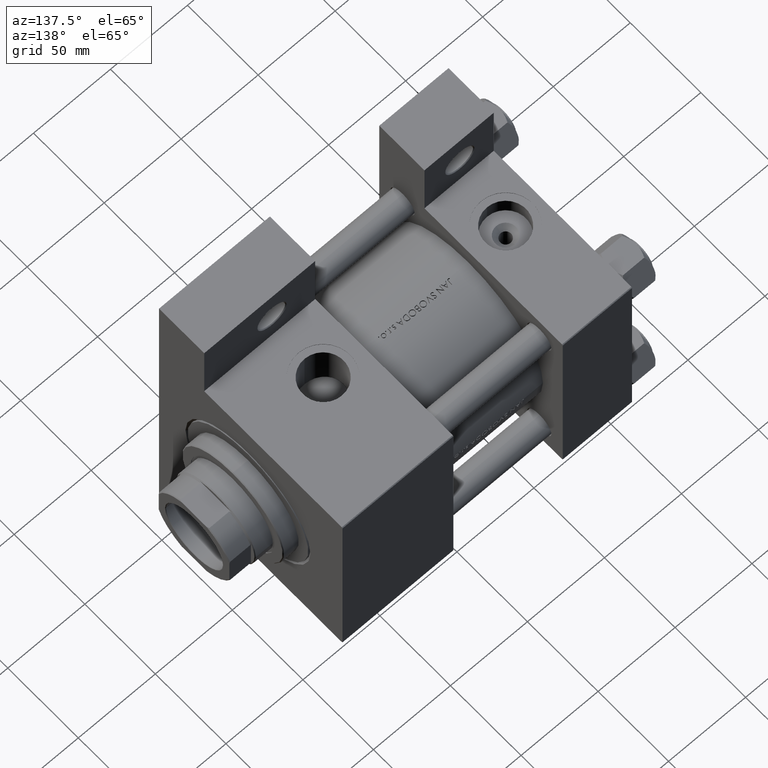
[diagram: clean part render]
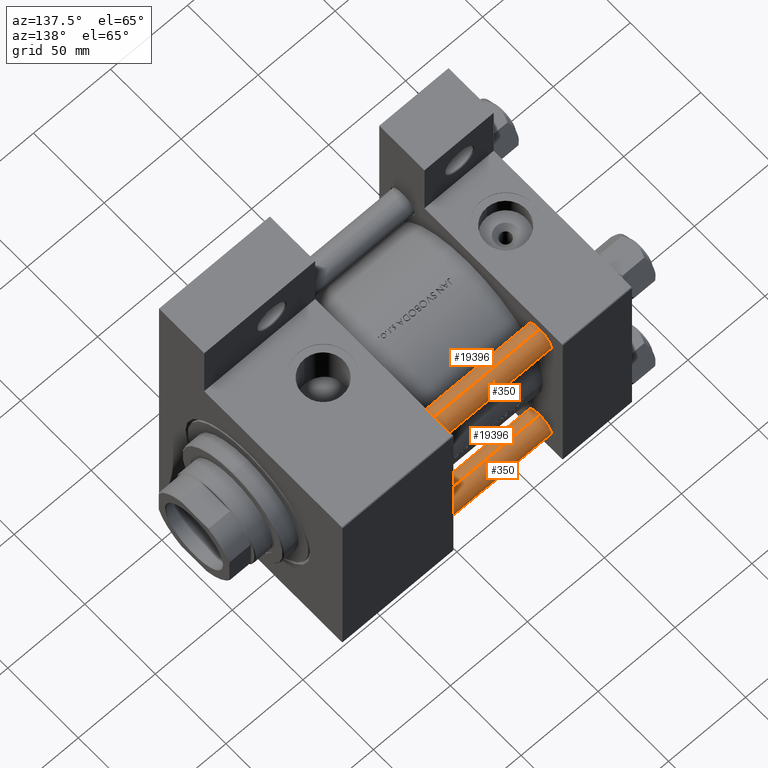
[diagram: same view with one multi-face feature highlighted, each face labeled with its STEP entity id]
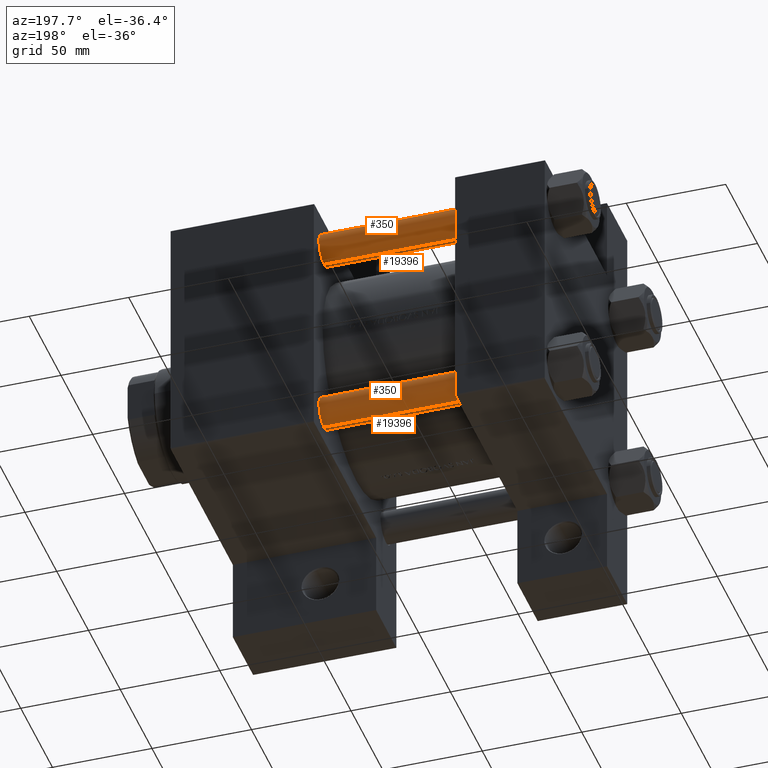
[diagram: same view with one multi-face feature highlighted, each face labeled with its STEP entity id]
A machine part, auxiliary view. The highlighted faces form ONE feature: a constant-radius fillet chain: 4 tangent blend faces with common blend radius 8 mm. The faces share edges in the B-rep.
A second angle (auxiliary view) of the same feature is appended — it is thin or edge-on in the first view.
Their STEP definitions:
[1] entity #19396 (Cylinder):
#343 = EDGE_CURVE ( 'NONE', #8729, #14039, #44628, .T. ) ;
#3503 = LINE ( 'NONE', #40464, #38687 ) ;
#3846 = CARTESIAN_POINT ( 'NONE',  ( 0.000000000000000000, 0.000000000000000000, 149.0000000000000000 ) ) ;
#4328 = AXIS2_PLACEMENT_3D ( 'NONE', #19333, #11572, #41271 ) ;
#4492 = EDGE_CURVE ( 'NONE', #6381, #22652, #3503, .T. ) ;
#6381 = VERTEX_POINT ( 'NONE', #13629 ) ;
#7470 = FACE_OUTER_BOUND ( 'NONE', #25551, .T. ) ;
#7726 = CIRCLE ( 'NONE', #34938, 8.000000000000000000 ) ;
#7809 = DIRECTION ( 'NONE',  ( 1.000000000000000000, 0.000000000000000000, 0.000000000000000000 ) ) ;
#8676 = CARTESIAN_POINT ( 'NONE',  ( -8.000000000000000000, 0.000000000000000000, 148.5000000000000000 ) ) ;
#8729 = VERTEX_POINT ( 'NONE', #8676 ) ;
#10760 = DIRECTION ( 'NONE',  ( -0.000000000000000000, -0.000000000000000000, -1.000000000000000000 ) ) ;
#11572 = DIRECTION ( 'NONE',  ( -0.000000000000000000, -0.000000000000000000, 1.000000000000000000 ) ) ;
#12418 = EDGE_CURVE ( 'NONE', #6381, #8729, #7726, .T. ) ;
#12838 = CARTESIAN_POINT ( 'NONE',  ( 8.000000000000000000, 9.797174393178825657E-16, 0.5000000000000281997 ) ) ;
#13629 = CARTESIAN_POINT ( 'NONE',  ( 8.000000000000000000, 9.797174393178825657E-16, 148.5000000000000000 ) ) ;
#14039 = VERTEX_POINT ( 'NONE', #38333 ) ;
#14159 = AXIS2_PLACEMENT_3D ( 'NONE', #3846, #40333, #21803 ) ;
#15387 = ORIENTED_EDGE ( 'NONE', *, *, #4492, .F. ) ;
#19333 = CARTESIAN_POINT ( 'NONE',  ( 0.000000000000000000, 0.000000000000000000, 0.5000000000000281997 ) ) ;
#19396 = ADVANCED_FACE ( 'NONE', ( #7470 ), #37158, .T. ) ;
#21466 = ORIENTED_EDGE ( 'NONE', *, *, #12418, .T. ) ;
#21803 = DIRECTION ( 'NONE',  ( -1.000000000000000000, 0.000000000000000000, 0.000000000000000000 ) ) ;
#22652 = VERTEX_POINT ( 'NONE', #12838 ) ;
#25551 = EDGE_LOOP ( 'NONE', ( #15387, #21466, #29806, #27787 ) ) ;
#27787 = ORIENTED_EDGE ( 'NONE', *, *, #39808, .T. ) ;
#29806 = ORIENTED_EDGE ( 'NONE', *, *, #343, .T. ) ;
#29960 = CARTESIAN_POINT ( 'NONE',  ( 0.000000000000000000, 0.000000000000000000, 148.5000000000000000 ) ) ;
#32956 = DIRECTION ( 'NONE',  ( -0.000000000000000000, -0.000000000000000000, -1.000000000000000000 ) ) ;
#34938 = AXIS2_PLACEMENT_3D ( 'NONE', #29960, #45277, #7809 ) ;
#37158 = CYLINDRICAL_SURFACE ( 'NONE', #14159, 8.000000000000000000 ) ;
#37774 = VECTOR ( 'NONE', #32956, 1000.000000000000000 ) ;
#38333 = CARTESIAN_POINT ( 'NONE',  ( -8.000000000000000000, 0.000000000000000000, 0.5000000000000281997 ) ) ;
#38687 = VECTOR ( 'NONE', #10760, 1000.000000000000000 ) ;
#39808 = EDGE_CURVE ( 'NONE', #14039, #22652, #46266, .T. ) ;
#40333 = DIRECTION ( 'NONE',  ( -0.000000000000000000, -0.000000000000000000, -1.000000000000000000 ) ) ;
#40464 = CARTESIAN_POINT ( 'NONE',  ( 8.000000000000000000, 9.797174393178825657E-16, 149.0000000000000000 ) ) ;
#41271 = DIRECTION ( 'NONE',  ( 1.000000000000000000, 0.000000000000000000, 0.000000000000000000 ) ) ;
#44628 = LINE ( 'NONE', #44859, #37774 ) ;
#44859 = CARTESIAN_POINT ( 'NONE',  ( -8.000000000000000000, 0.000000000000000000, 149.0000000000000000 ) ) ;
#45277 = DIRECTION ( 'NONE',  ( 0.000000000000000000, 0.000000000000000000, -1.000000000000000000 ) ) ;
#46266 = CIRCLE ( 'NONE', #4328, 8.000000000000000000 ) ;
[2] entity #350 (Cylinder):
#343 = EDGE_CURVE ( 'NONE', #8729, #14039, #44628, .T. ) ;
#350 = ADVANCED_FACE ( 'NONE', ( #47784 ), #29290, .T. ) ;
#759 = EDGE_CURVE ( 'NONE', #22652, #14039, #33922, .T. ) ;
#3503 = LINE ( 'NONE', #40464, #38687 ) ;
#3762 = DIRECTION ( 'NONE',  ( 0.000000000000000000, 0.000000000000000000, -1.000000000000000000 ) ) ;
#4492 = EDGE_CURVE ( 'NONE', #6381, #22652, #3503, .T. ) ;
#6381 = VERTEX_POINT ( 'NONE', #13629 ) ;
#7635 = DIRECTION ( 'NONE',  ( -0.000000000000000000, -0.000000000000000000, -1.000000000000000000 ) ) ;
#8031 = ORIENTED_EDGE ( 'NONE', *, *, #4492, .T. ) ;
#8676 = CARTESIAN_POINT ( 'NONE',  ( -8.000000000000000000, 0.000000000000000000, 148.5000000000000000 ) ) ;
#8729 = VERTEX_POINT ( 'NONE', #8676 ) ;
#10760 = DIRECTION ( 'NONE',  ( -0.000000000000000000, -0.000000000000000000, -1.000000000000000000 ) ) ;
#12306 = ORIENTED_EDGE ( 'NONE', *, *, #26586, .T. ) ;
#12838 = CARTESIAN_POINT ( 'NONE',  ( 8.000000000000000000, 9.797174393178825657E-16, 0.5000000000000281997 ) ) ;
#12877 = CARTESIAN_POINT ( 'NONE',  ( 0.000000000000000000, 0.000000000000000000, 0.5000000000000281997 ) ) ;
#13629 = CARTESIAN_POINT ( 'NONE',  ( 8.000000000000000000, 9.797174393178825657E-16, 148.5000000000000000 ) ) ;
#14039 = VERTEX_POINT ( 'NONE', #38333 ) ;
#14106 = AXIS2_PLACEMENT_3D ( 'NONE', #15367, #3762, #45086 ) ;
#14907 = EDGE_LOOP ( 'NONE', ( #12306, #8031, #27548, #26504 ) ) ;
#15367 = CARTESIAN_POINT ( 'NONE',  ( 0.000000000000000000, 0.000000000000000000, 148.5000000000000000 ) ) ;
#20667 = AXIS2_PLACEMENT_3D ( 'NONE', #12877, #45278, #30670 ) ;
#22652 = VERTEX_POINT ( 'NONE', #12838 ) ;
#24552 = AXIS2_PLACEMENT_3D ( 'NONE', #40970, #7635, #44390 ) ;
#26504 = ORIENTED_EDGE ( 'NONE', *, *, #343, .F. ) ;
#26586 = EDGE_CURVE ( 'NONE', #8729, #6381, #39754, .T. ) ;
#27548 = ORIENTED_EDGE ( 'NONE', *, *, #759, .T. ) ;
#29290 = CYLINDRICAL_SURFACE ( 'NONE', #24552, 8.000000000000000000 ) ;
#30670 = DIRECTION ( 'NONE',  ( 1.000000000000000000, 0.000000000000000000, 0.000000000000000000 ) ) ;
#32956 = DIRECTION ( 'NONE',  ( -0.000000000000000000, -0.000000000000000000, -1.000000000000000000 ) ) ;
#33922 = CIRCLE ( 'NONE', #20667, 8.000000000000000000 ) ;
#37774 = VECTOR ( 'NONE', #32956, 1000.000000000000000 ) ;
#38333 = CARTESIAN_POINT ( 'NONE',  ( -8.000000000000000000, 0.000000000000000000, 0.5000000000000281997 ) ) ;
#38687 = VECTOR ( 'NONE', #10760, 1000.000000000000000 ) ;
#39754 = CIRCLE ( 'NONE', #14106, 8.000000000000000000 ) ;
#40464 = CARTESIAN_POINT ( 'NONE',  ( 8.000000000000000000, 9.797174393178825657E-16, 149.0000000000000000 ) ) ;
#40970 = CARTESIAN_POINT ( 'NONE',  ( 0.000000000000000000, 0.000000000000000000, 149.0000000000000000 ) ) ;
#44390 = DIRECTION ( 'NONE',  ( -1.000000000000000000, 0.000000000000000000, 0.000000000000000000 ) ) ;
#44628 = LINE ( 'NONE', #44859, #37774 ) ;
#44859 = CARTESIAN_POINT ( 'NONE',  ( -8.000000000000000000, 0.000000000000000000, 149.0000000000000000 ) ) ;
#45086 = DIRECTION ( 'NONE',  ( 1.000000000000000000, 0.000000000000000000, 0.000000000000000000 ) ) ;
#45278 = DIRECTION ( 'NONE',  ( -0.000000000000000000, -0.000000000000000000, 1.000000000000000000 ) ) ;
#47784 = FACE_OUTER_BOUND ( 'NONE', #14907, .T. ) ;
[3] entity #19396 (Cylinder):
#343 = EDGE_CURVE ( 'NONE', #8729, #14039, #44628, .T. ) ;
#3503 = LINE ( 'NONE', #40464, #38687 ) ;
#3846 = CARTESIAN_POINT ( 'NONE',  ( 0.000000000000000000, 0.000000000000000000, 149.0000000000000000 ) ) ;
#4328 = AXIS2_PLACEMENT_3D ( 'NONE', #19333, #11572, #41271 ) ;
#4492 = EDGE_CURVE ( 'NONE', #6381, #22652, #3503, .T. ) ;
#6381 = VERTEX_POINT ( 'NONE', #13629 ) ;
#7470 = FACE_OUTER_BOUND ( 'NONE', #25551, .T. ) ;
#7726 = CIRCLE ( 'NONE', #34938, 8.000000000000000000 ) ;
#7809 = DIRECTION ( 'NONE',  ( 1.000000000000000000, 0.000000000000000000, 0.000000000000000000 ) ) ;
#8676 = CARTESIAN_POINT ( 'NONE',  ( -8.000000000000000000, 0.000000000000000000, 148.5000000000000000 ) ) ;
#8729 = VERTEX_POINT ( 'NONE', #8676 ) ;
#10760 = DIRECTION ( 'NONE',  ( -0.000000000000000000, -0.000000000000000000, -1.000000000000000000 ) ) ;
#11572 = DIRECTION ( 'NONE',  ( -0.000000000000000000, -0.000000000000000000, 1.000000000000000000 ) ) ;
#12418 = EDGE_CURVE ( 'NONE', #6381, #8729, #7726, .T. ) ;
#12838 = CARTESIAN_POINT ( 'NONE',  ( 8.000000000000000000, 9.797174393178825657E-16, 0.5000000000000281997 ) ) ;
#13629 = CARTESIAN_POINT ( 'NONE',  ( 8.000000000000000000, 9.797174393178825657E-16, 148.5000000000000000 ) ) ;
#14039 = VERTEX_POINT ( 'NONE', #38333 ) ;
#14159 = AXIS2_PLACEMENT_3D ( 'NONE', #3846, #40333, #21803 ) ;
#15387 = ORIENTED_EDGE ( 'NONE', *, *, #4492, .F. ) ;
#19333 = CARTESIAN_POINT ( 'NONE',  ( 0.000000000000000000, 0.000000000000000000, 0.5000000000000281997 ) ) ;
#19396 = ADVANCED_FACE ( 'NONE', ( #7470 ), #37158, .T. ) ;
#21466 = ORIENTED_EDGE ( 'NONE', *, *, #12418, .T. ) ;
#21803 = DIRECTION ( 'NONE',  ( -1.000000000000000000, 0.000000000000000000, 0.000000000000000000 ) ) ;
#22652 = VERTEX_POINT ( 'NONE', #12838 ) ;
#25551 = EDGE_LOOP ( 'NONE', ( #15387, #21466, #29806, #27787 ) ) ;
#27787 = ORIENTED_EDGE ( 'NONE', *, *, #39808, .T. ) ;
#29806 = ORIENTED_EDGE ( 'NONE', *, *, #343, .T. ) ;
#29960 = CARTESIAN_POINT ( 'NONE',  ( 0.000000000000000000, 0.000000000000000000, 148.5000000000000000 ) ) ;
#32956 = DIRECTION ( 'NONE',  ( -0.000000000000000000, -0.000000000000000000, -1.000000000000000000 ) ) ;
#34938 = AXIS2_PLACEMENT_3D ( 'NONE', #29960, #45277, #7809 ) ;
#37158 = CYLINDRICAL_SURFACE ( 'NONE', #14159, 8.000000000000000000 ) ;
#37774 = VECTOR ( 'NONE', #32956, 1000.000000000000000 ) ;
#38333 = CARTESIAN_POINT ( 'NONE',  ( -8.000000000000000000, 0.000000000000000000, 0.5000000000000281997 ) ) ;
#38687 = VECTOR ( 'NONE', #10760, 1000.000000000000000 ) ;
#39808 = EDGE_CURVE ( 'NONE', #14039, #22652, #46266, .T. ) ;
#40333 = DIRECTION ( 'NONE',  ( -0.000000000000000000, -0.000000000000000000, -1.000000000000000000 ) ) ;
#40464 = CARTESIAN_POINT ( 'NONE',  ( 8.000000000000000000, 9.797174393178825657E-16, 149.0000000000000000 ) ) ;
#41271 = DIRECTION ( 'NONE',  ( 1.000000000000000000, 0.000000000000000000, 0.000000000000000000 ) ) ;
#44628 = LINE ( 'NONE', #44859, #37774 ) ;
#44859 = CARTESIAN_POINT ( 'NONE',  ( -8.000000000000000000, 0.000000000000000000, 149.0000000000000000 ) ) ;
#45277 = DIRECTION ( 'NONE',  ( 0.000000000000000000, 0.000000000000000000, -1.000000000000000000 ) ) ;
#46266 = CIRCLE ( 'NONE', #4328, 8.000000000000000000 ) ;
[4] entity #350 (Cylinder):
#343 = EDGE_CURVE ( 'NONE', #8729, #14039, #44628, .T. ) ;
#350 = ADVANCED_FACE ( 'NONE', ( #47784 ), #29290, .T. ) ;
#759 = EDGE_CURVE ( 'NONE', #22652, #14039, #33922, .T. ) ;
#3503 = LINE ( 'NONE', #40464, #38687 ) ;
#3762 = DIRECTION ( 'NONE',  ( 0.000000000000000000, 0.000000000000000000, -1.000000000000000000 ) ) ;
#4492 = EDGE_CURVE ( 'NONE', #6381, #22652, #3503, .T. ) ;
#6381 = VERTEX_POINT ( 'NONE', #13629 ) ;
#7635 = DIRECTION ( 'NONE',  ( -0.000000000000000000, -0.000000000000000000, -1.000000000000000000 ) ) ;
#8031 = ORIENTED_EDGE ( 'NONE', *, *, #4492, .T. ) ;
#8676 = CARTESIAN_POINT ( 'NONE',  ( -8.000000000000000000, 0.000000000000000000, 148.5000000000000000 ) ) ;
#8729 = VERTEX_POINT ( 'NONE', #8676 ) ;
#10760 = DIRECTION ( 'NONE',  ( -0.000000000000000000, -0.000000000000000000, -1.000000000000000000 ) ) ;
#12306 = ORIENTED_EDGE ( 'NONE', *, *, #26586, .T. ) ;
#12838 = CARTESIAN_POINT ( 'NONE',  ( 8.000000000000000000, 9.797174393178825657E-16, 0.5000000000000281997 ) ) ;
#12877 = CARTESIAN_POINT ( 'NONE',  ( 0.000000000000000000, 0.000000000000000000, 0.5000000000000281997 ) ) ;
#13629 = CARTESIAN_POINT ( 'NONE',  ( 8.000000000000000000, 9.797174393178825657E-16, 148.5000000000000000 ) ) ;
#14039 = VERTEX_POINT ( 'NONE', #38333 ) ;
#14106 = AXIS2_PLACEMENT_3D ( 'NONE', #15367, #3762, #45086 ) ;
#14907 = EDGE_LOOP ( 'NONE', ( #12306, #8031, #27548, #26504 ) ) ;
#15367 = CARTESIAN_POINT ( 'NONE',  ( 0.000000000000000000, 0.000000000000000000, 148.5000000000000000 ) ) ;
#20667 = AXIS2_PLACEMENT_3D ( 'NONE', #12877, #45278, #30670 ) ;
#22652 = VERTEX_POINT ( 'NONE', #12838 ) ;
#24552 = AXIS2_PLACEMENT_3D ( 'NONE', #40970, #7635, #44390 ) ;
#26504 = ORIENTED_EDGE ( 'NONE', *, *, #343, .F. ) ;
#26586 = EDGE_CURVE ( 'NONE', #8729, #6381, #39754, .T. ) ;
#27548 = ORIENTED_EDGE ( 'NONE', *, *, #759, .T. ) ;
#29290 = CYLINDRICAL_SURFACE ( 'NONE', #24552, 8.000000000000000000 ) ;
#30670 = DIRECTION ( 'NONE',  ( 1.000000000000000000, 0.000000000000000000, 0.000000000000000000 ) ) ;
#32956 = DIRECTION ( 'NONE',  ( -0.000000000000000000, -0.000000000000000000, -1.000000000000000000 ) ) ;
#33922 = CIRCLE ( 'NONE', #20667, 8.000000000000000000 ) ;
#37774 = VECTOR ( 'NONE', #32956, 1000.000000000000000 ) ;
#38333 = CARTESIAN_POINT ( 'NONE',  ( -8.000000000000000000, 0.000000000000000000, 0.5000000000000281997 ) ) ;
#38687 = VECTOR ( 'NONE', #10760, 1000.000000000000000 ) ;
#39754 = CIRCLE ( 'NONE', #14106, 8.000000000000000000 ) ;
#40464 = CARTESIAN_POINT ( 'NONE',  ( 8.000000000000000000, 9.797174393178825657E-16, 149.0000000000000000 ) ) ;
#40970 = CARTESIAN_POINT ( 'NONE',  ( 0.000000000000000000, 0.000000000000000000, 149.0000000000000000 ) ) ;
#44390 = DIRECTION ( 'NONE',  ( -1.000000000000000000, 0.000000000000000000, 0.000000000000000000 ) ) ;
#44628 = LINE ( 'NONE', #44859, #37774 ) ;
#44859 = CARTESIAN_POINT ( 'NONE',  ( -8.000000000000000000, 0.000000000000000000, 149.0000000000000000 ) ) ;
#45086 = DIRECTION ( 'NONE',  ( 1.000000000000000000, 0.000000000000000000, 0.000000000000000000 ) ) ;
#45278 = DIRECTION ( 'NONE',  ( -0.000000000000000000, -0.000000000000000000, 1.000000000000000000 ) ) ;
#47784 = FACE_OUTER_BOUND ( 'NONE', #14907, .T. ) ;